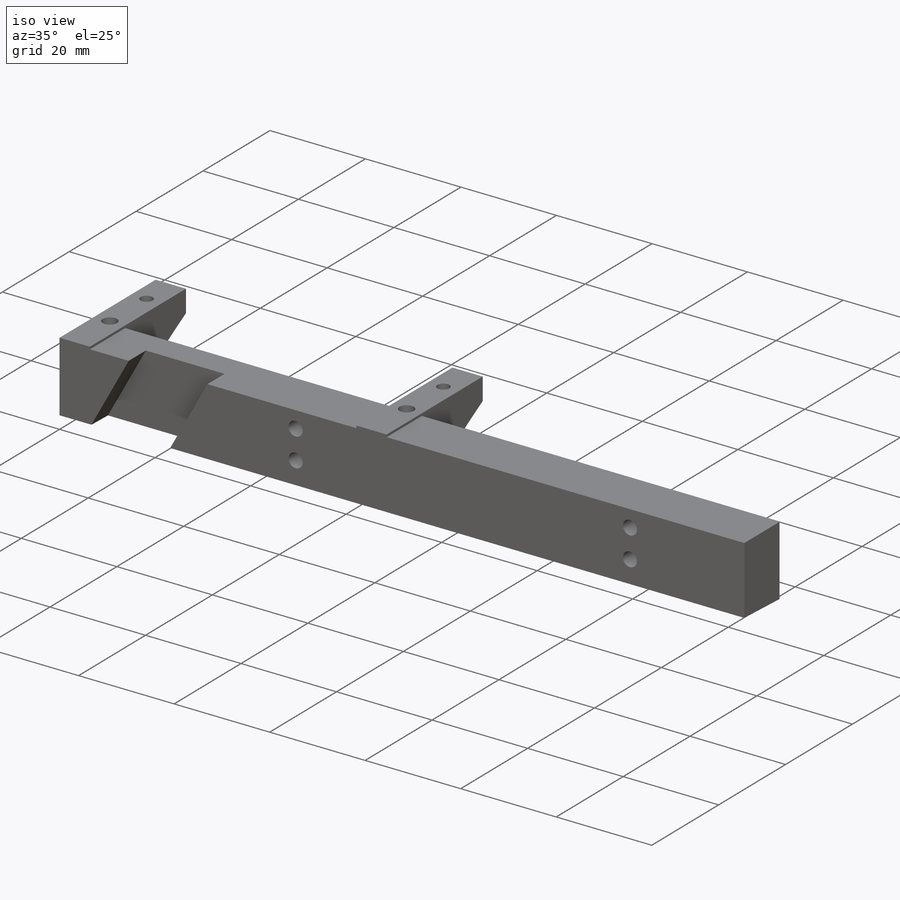
[diagram: iso view]
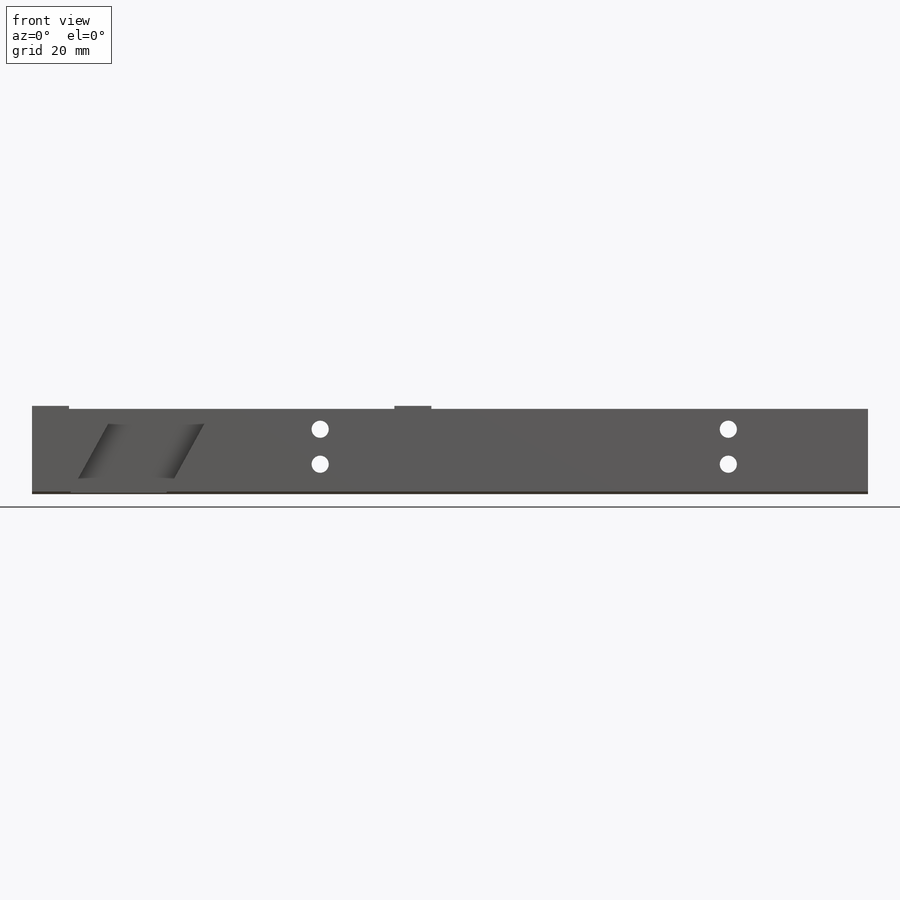
[diagram: front view]
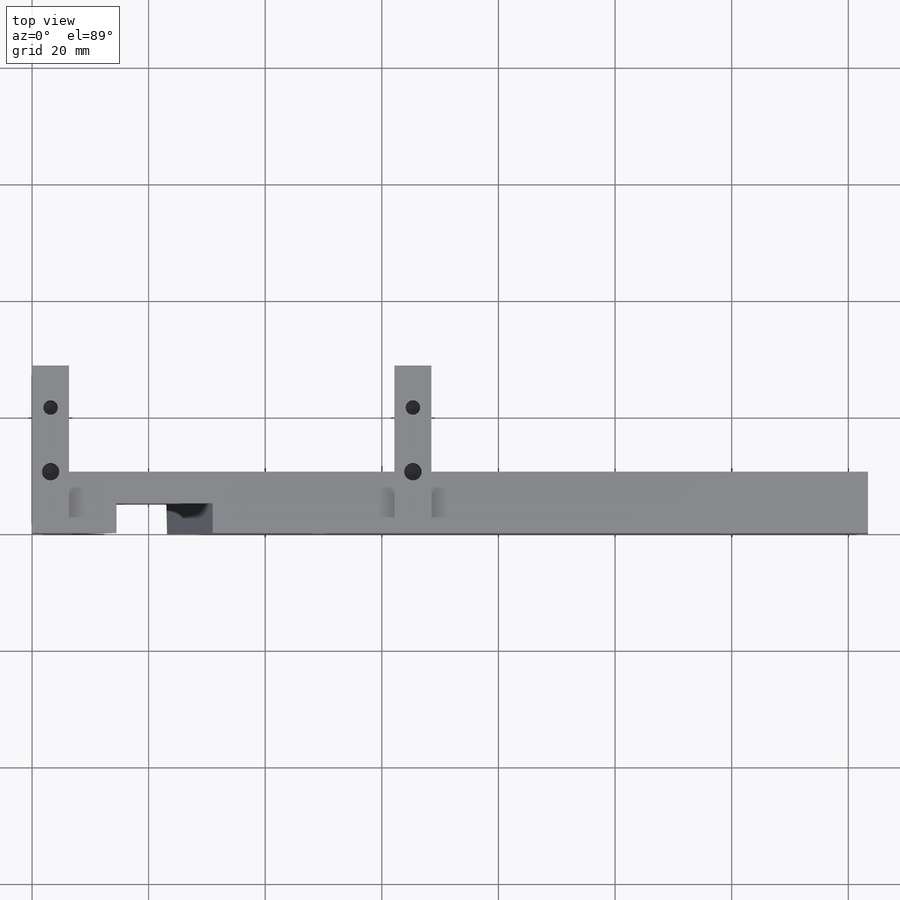
[diagram: top view]
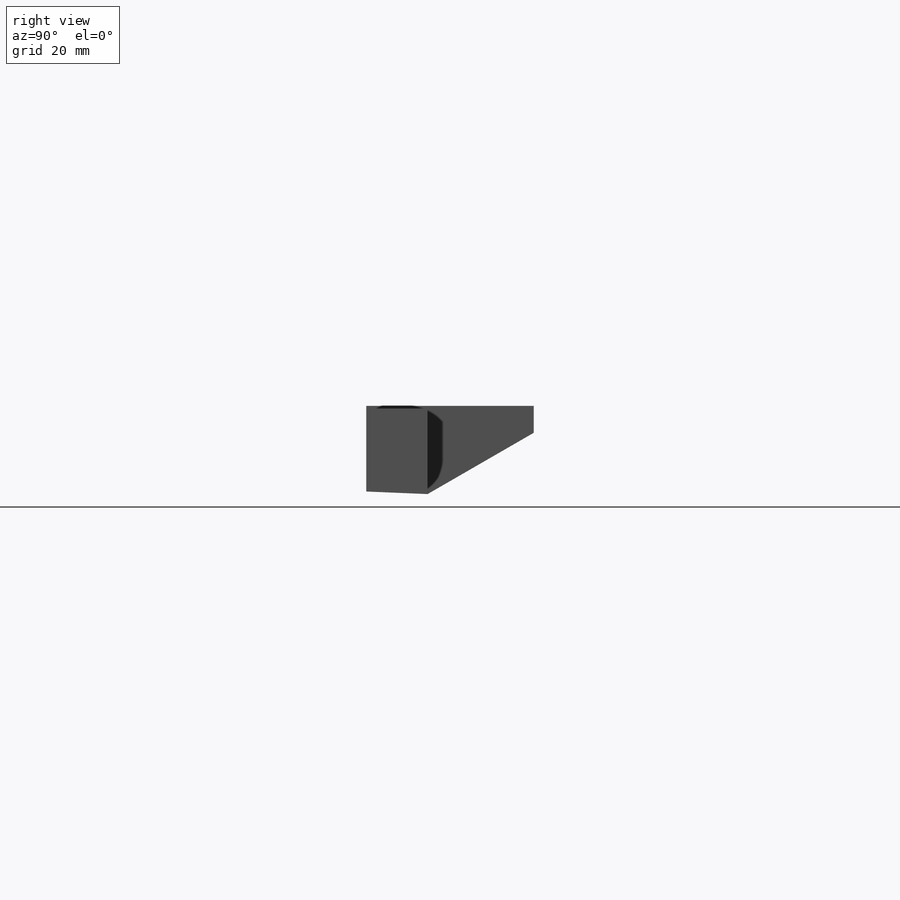
[diagram: right view]
SOLIDWORKS PART (.sldprt)
format: sldprt  version: not decoded by parser v0  size: 1,101,824 bytes
history: native  units: mm
features: sketch x11, plane x5, extrude x4, hole x3, thread x2, material x1, cut_extrude x1 + 2 further entries (+13 scaffold rows collapsed)
feature tree (42):
  scaffold x13  (default folders/planes/origin — collapsed)
  material  "Material <not specified>"
  plane  "Plane1"
  plane  "Plane2"
  plane  "Plane3"
  "Axis2"
  "Axis3"
  sketch  "Sketch73"  dims[c1.D2=183.0mm c1.D1=2.5mm c2.D2=193.2625mm c2.D3=~27.232494mm c2.D4=14.7375mm c2.D5=0.5mm c3.D4=208.0mm c3.D2=~29.232494mm c3.D1=10.525mm c4.D2=14.62mm c4.D3=14.18mm]
  extrude  "Extrude2"  Depth=143.3725mm
  sketch  "Sketch113"  dims[c1.D1=18.0mm c1.D2=~12.157031mm c2.D2=60.0deg c3.D2=0.5mm c3.D1=14.88mm c4.D1=60.0deg c4.D3=28.732mm]
  extrude  "Boss-Extrude4"  Depth=6.35mm
  plane  "Plane9"  Offset=62.1372mm
  sketch  "Sketch114"  dims[c1.D1=0.5mm c1.D2=18.0mm c1.D3=~21.060233mm c2.D3=60.0deg c2.D1=0.0mm]
  extrude  "Boss-Extrude5"  Depth=6.35mm
  hole  "M3x0.5 Tapped Hole1"  Diameter=3mm Depth=7.5mm
  sketch  "Sketch89"  dims[D1=10.5mm]
  sketch  "Sketch88"  dims[hole-wizard template sketch: 50 standard entries collapsed; hole parameters above]
  thread  "Hole Thread4"  Diameter=6mm  [1 undecoded]
  thread  "Hole Thread5"  Diameter=6mm  [1 undecoded]
  hole  "Ø2.5 (2.5) Diameter Hole1"  Diameter=2.5mm Depth=6.35mm
  sketch  "Sketch116"  dims[D1=11.0mm]
  sketch  "Sketch115"  dims[hole-wizard template sketch: 47 standard entries collapsed; hole parameters kept: c15.Hole Depth=6.35mm c15.D3=~14.816244mm c15.Drill Angle=118.0deg]
  sketch  "Sketch117"  dims[c1.D1=6.734mm c1.D2=14.44mm c1.D3=~14.58468mm c2.D3=61.15deg c2.D1=~16.255655mm c3.D1=61.16deg c3.D3=14.483mm]
  cut_extrude  "Cut-Extrude1"  Depth=5.1mm
  sketch  "Sketch118"  dims[D1=0.08mm]
  extrude  "Bond gap measuring ridge"  [1 undecoded]
  plane  "dist from center to back surf"  Offset=207.55mm
  hole  "#4 Clearance Hole1"  Diameter=2.9464mm Depth=10.525mm
  sketch  "Sketch120"  dims[D1=3.5mm D2=6.0mm D3=70.0mm D4=23.953mm]
  sketch  "Sketch121"  dims[hole-wizard template sketch: 60 standard entries collapsed; hole parameters kept: c18.Thru Hole Depth=10.525mm]
decode coverage: 20 of 21 modeling features carry decoded parameters; 2 rows unclassified (native names shown)
note: ~ marks probable driven/reference dimensions
note: 3 parameter values undecoded
note: suppression state not decoded; provenance and decode notes live in map.json
